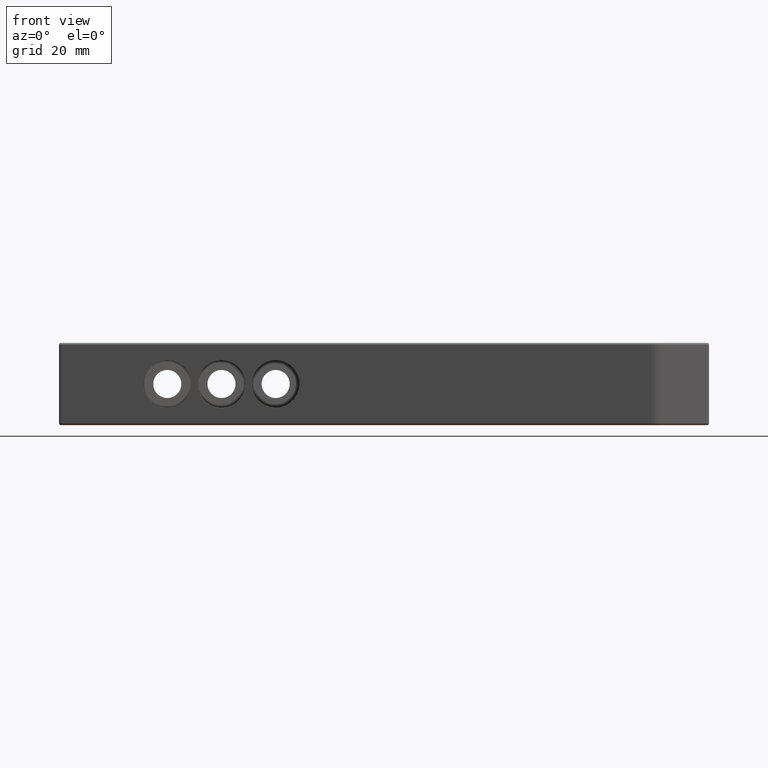
[diagram: clean part render]
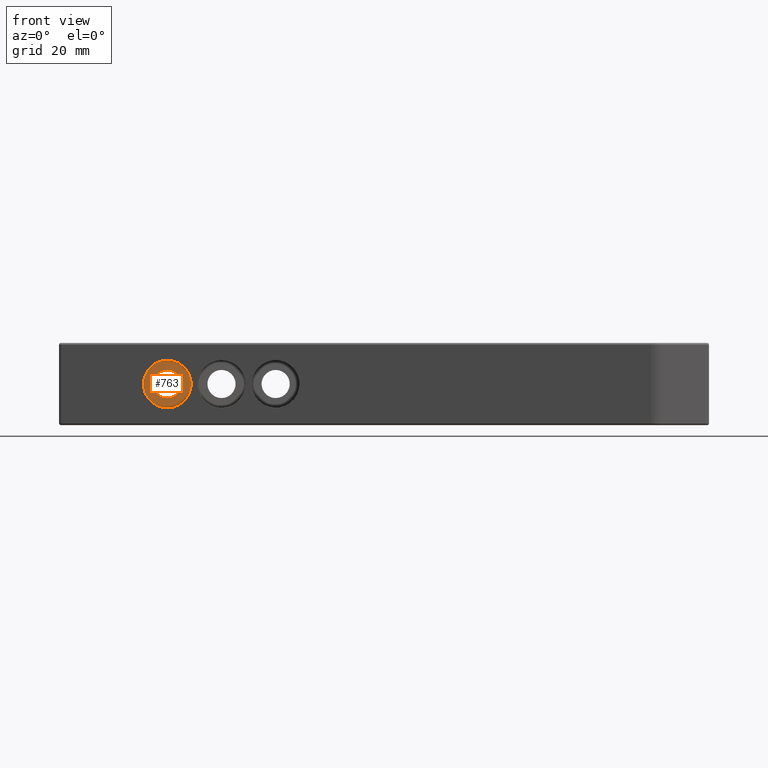
[diagram: same view with one face highlighted and labeled with its STEP entity id]
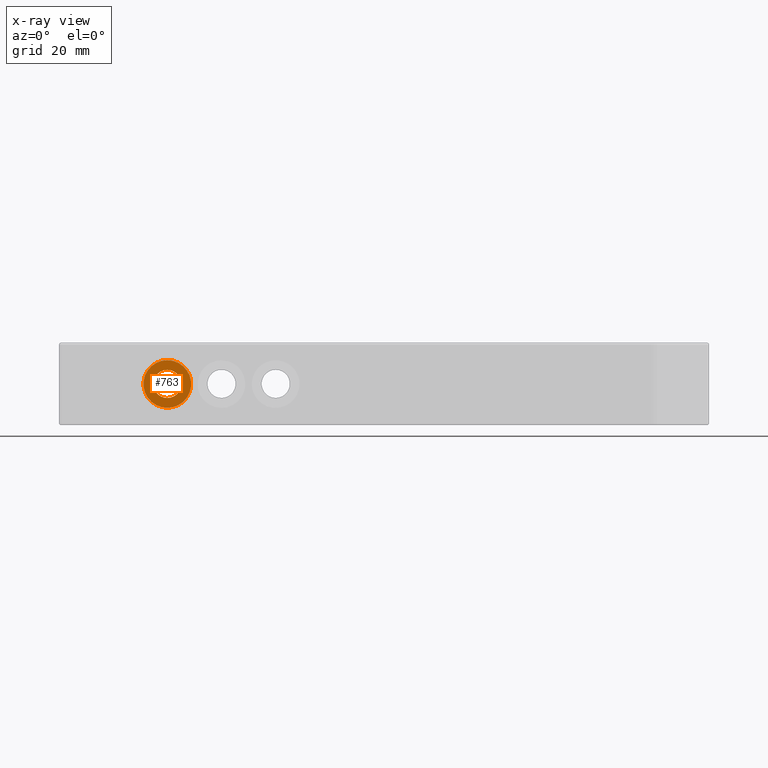
[diagram: x-ray of the same camera — body ghosted, the highlighted face saturated]
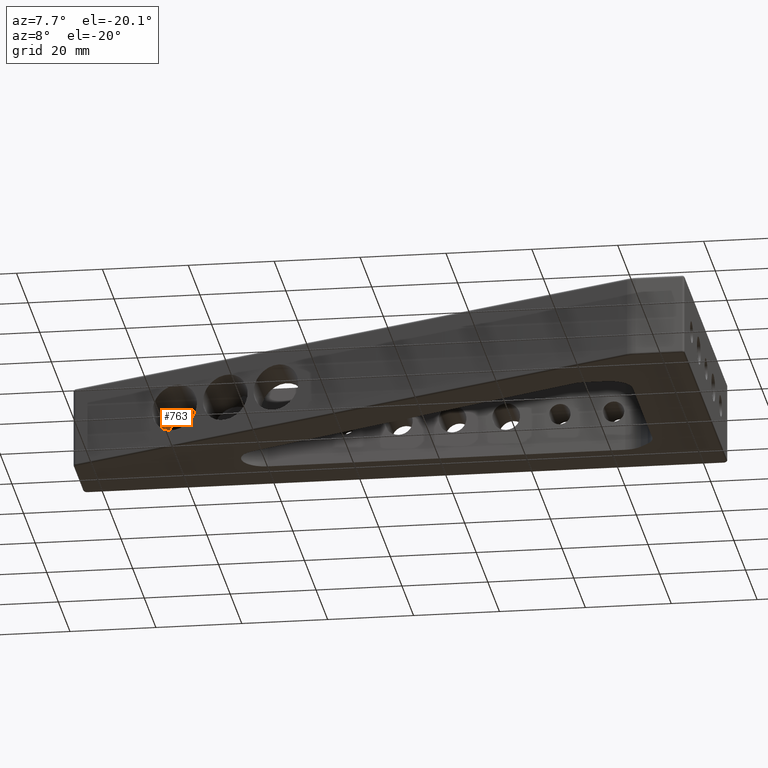
[diagram: same view with one face highlighted and labeled with its STEP entity id]
A machine part, front view. The second image highlights one B-rep face of the part: STEP entity #763.
The next image is the same camera in x-ray: the body ghosted, the highlighted face saturated — about 0% of this face is hidden behind the body in this view.
A second angle (auxiliary view) of the same face is appended — the face is thin or edge-on in the first view.
In plain terms, the highlighted planar face has unit normal (0, -1, 0).
Its self-contained STEP definition (entity closure, byte-faithful):
#31 = CARTESIAN_POINT ( 'NONE',  ( 679.6671691626519300, 643.1374962495044700, 0.0000000000000000000 ) ) ;
#32 = DIRECTION ( 'NONE',  ( -0.0000000000000000000, 1.000000000000000000, -0.0000000000000000000 ) ) ;
#33 = DIRECTION ( 'NONE',  ( 0.0000000000000000000, 0.0000000000000000000, -1.000000000000000000 ) ) ;
#47 = CARTESIAN_POINT ( 'NONE',  ( 679.6671691626519300, 643.1374962495044700, 0.0000000000000000000 ) ) ;
#48 = DIRECTION ( 'NONE',  ( -0.0000000000000000000, 1.000000000000000000, -0.0000000000000000000 ) ) ;
#49 = DIRECTION ( 'NONE',  ( 0.0000000000000000000, 0.0000000000000000000, -1.000000000000000000 ) ) ;
#178 = EDGE_CURVE ( 'NONE', #1443, #1443, #854, .T. ) ;
#240 = CARTESIAN_POINT ( 'NONE',  ( 699.1897661521381900, 643.1374962495044700, 9.500000000000000000 ) ) ;
#242 = PLANE ( 'NONE',  #637 ) ;
#244 = DIRECTION ( 'NONE',  ( 0.0000000000000000000, -1.000000000000000000, 0.0000000000000000000 ) ) ;
#245 = DIRECTION ( 'NONE',  ( 0.0000000000000000000, -0.0000000000000000000, -1.000000000000000000 ) ) ;
#637 = AXIS2_PLACEMENT_3D ( 'NONE', #240, #244, #245 ) ;
#674 = EDGE_CURVE ( 'NONE', #1442, #1442, #851, .T. ) ;
#763 = ADVANCED_FACE ( 'NONE', ( #1595, #1587 ), #242, .T. ) ;
#851 = CIRCLE ( 'NONE', #1994, 3.249999999999975100 ) ;
#854 = CIRCLE ( 'NONE', #1999, 5.499999999999959100 ) ;
#1068 = ORIENTED_EDGE ( 'NONE', *, *, #674, .T. ) ;
#1069 = ORIENTED_EDGE ( 'NONE', *, *, #178, .F. ) ;
#1316 = EDGE_LOOP ( 'NONE', ( #1068 ) ) ;
#1317 = EDGE_LOOP ( 'NONE', ( #1069 ) ) ;
#1442 = VERTEX_POINT ( 'NONE', #1796 ) ;
#1443 = VERTEX_POINT ( 'NONE', #1795 ) ;
#1587 = FACE_BOUND ( 'NONE', #1316, .T. ) ;
#1595 = FACE_OUTER_BOUND ( 'NONE', #1317, .T. ) ;
#1795 = CARTESIAN_POINT ( 'NONE',  ( 679.6671691626519300, 643.1374962495044700, -5.499999999999959100 ) ) ;
#1796 = CARTESIAN_POINT ( 'NONE',  ( 679.6671691626519300, 643.1374962495044700, -3.249999999999975100 ) ) ;
#1994 = AXIS2_PLACEMENT_3D ( 'NONE', #47, #48, #49 ) ;
#1999 = AXIS2_PLACEMENT_3D ( 'NONE', #31, #32, #33 ) ;